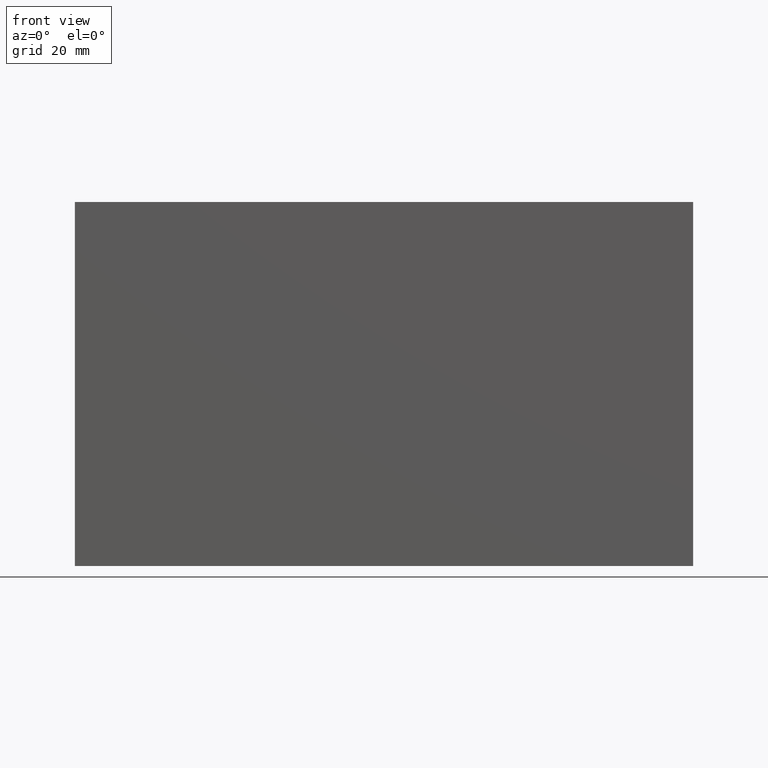
[diagram: clean part render]
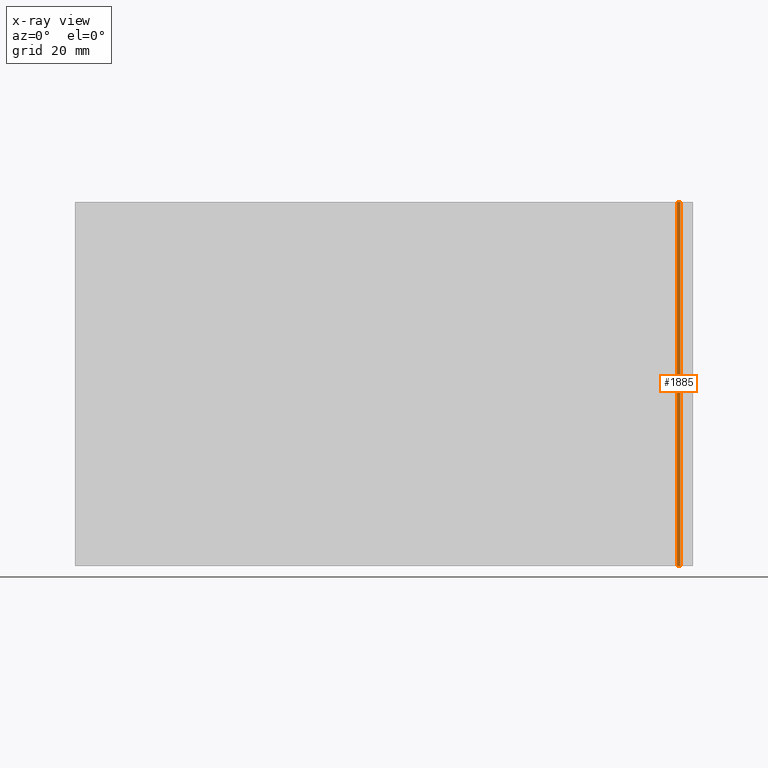
[diagram: x-ray — body ghosted, one internal face saturated and labeled with its STEP entity id]
A machine part, front view, then the same camera in x-ray: the body is ghosted and one INTERNAL B-rep face — a face not visible from any outside direction — is saturated and labeled: STEP entity #1885.
In plain terms, the highlighted planar face has unit normal (0, -1, 0).
Its self-contained STEP definition (entity closure, byte-faithful):
#4 = VERTEX_POINT ( 'NONE', #3162 ) ;
#140 = VERTEX_POINT ( 'NONE', #1779 ) ;
#150 = EDGE_CURVE ( 'NONE', #4, #1143, #3421, .T. ) ;
#284 = DIRECTION ( 'NONE',  ( -1.000000000000000000, 0.0000000000000000000, 0.0000000000000000000 ) ) ;
#295 = LINE ( 'NONE', #3329, #3584 ) ;
#894 = VERTEX_POINT ( 'NONE', #3346 ) ;
#968 = EDGE_CURVE ( 'NONE', #1143, #140, #295, .T. ) ;
#1103 = LINE ( 'NONE', #2732, #1199 ) ;
#1143 = VERTEX_POINT ( 'NONE', #3343 ) ;
#1199 = VECTOR ( 'NONE', #284, 1000.000000000000000 ) ;
#1779 = CARTESIAN_POINT ( 'NONE',  ( 80.44847999999954880, 19.56251200000012247, 0.0000000000000000000 ) ) ;
#1831 = AXIS2_PLACEMENT_3D ( 'NONE', #2217, #2144, #2138 ) ;
#1885 = ADVANCED_FACE ( 'NONE', ( #2634 ), #2150, .F. ) ;
#2001 = DIRECTION ( 'NONE',  ( -1.000000000000000000, 0.0000000000000000000, 0.0000000000000000000 ) ) ;
#2025 = ORIENTED_EDGE ( 'NONE', *, *, #3198, .T. ) ;
#2138 = DIRECTION ( 'NONE',  ( 0.0000000000000000000, -0.0000000000000000000, -1.000000000000000000 ) ) ;
#2144 = DIRECTION ( 'NONE',  ( 0.0000000000000000000, -1.000000000000000000, 0.0000000000000000000 ) ) ;
#2150 = PLANE ( 'NONE',  #1831 ) ;
#2217 = CARTESIAN_POINT ( 'NONE',  ( 81.44783999999843616, 19.56251200000012247, 100.0000000000000000 ) ) ;
#2478 = DIRECTION ( 'NONE',  ( -0.0000000000000000000, -0.0000000000000000000, -1.000000000000000000 ) ) ;
#2624 = ORIENTED_EDGE ( 'NONE', *, *, #150, .F. ) ;
#2634 = FACE_OUTER_BOUND ( 'NONE', #3319, .T. ) ;
#2652 = ORIENTED_EDGE ( 'NONE', *, *, #2673, .T. ) ;
#2673 = EDGE_CURVE ( 'NONE', #4, #894, #3298, .T. ) ;
#2732 = CARTESIAN_POINT ( 'NONE',  ( 81.44783999999843616, 19.56251200000012247, 0.0000000000000000000 ) ) ;
#3093 = ORIENTED_EDGE ( 'NONE', *, *, #968, .F. ) ;
#3162 = CARTESIAN_POINT ( 'NONE',  ( 81.44783999999843616, 19.56251200000012247, 100.0000000000000000 ) ) ;
#3198 = EDGE_CURVE ( 'NONE', #894, #140, #1103, .T. ) ;
#3249 = DIRECTION ( 'NONE',  ( -0.0000000000000000000, -0.0000000000000000000, -1.000000000000000000 ) ) ;
#3298 = LINE ( 'NONE', #3502, #3303 ) ;
#3303 = VECTOR ( 'NONE', #2478, 1000.000000000000000 ) ;
#3319 = EDGE_LOOP ( 'NONE', ( #2025, #3093, #2624, #2652 ) ) ;
#3329 = CARTESIAN_POINT ( 'NONE',  ( 80.44847999999954880, 19.56251200000012247, 100.0000000000000000 ) ) ;
#3343 = CARTESIAN_POINT ( 'NONE',  ( 80.44847999999954880, 19.56251200000012247, 100.0000000000000000 ) ) ;
#3346 = CARTESIAN_POINT ( 'NONE',  ( 81.44783999999843616, 19.56251200000012247, 0.0000000000000000000 ) ) ;
#3421 = LINE ( 'NONE', #3569, #3469 ) ;
#3469 = VECTOR ( 'NONE', #2001, 1000.000000000000000 ) ;
#3502 = CARTESIAN_POINT ( 'NONE',  ( 81.44783999999843616, 19.56251200000012247, 100.0000000000000000 ) ) ;
#3569 = CARTESIAN_POINT ( 'NONE',  ( 81.44783999999843616, 19.56251200000012247, 100.0000000000000000 ) ) ;
#3584 = VECTOR ( 'NONE', #3249, 1000.000000000000000 ) ;